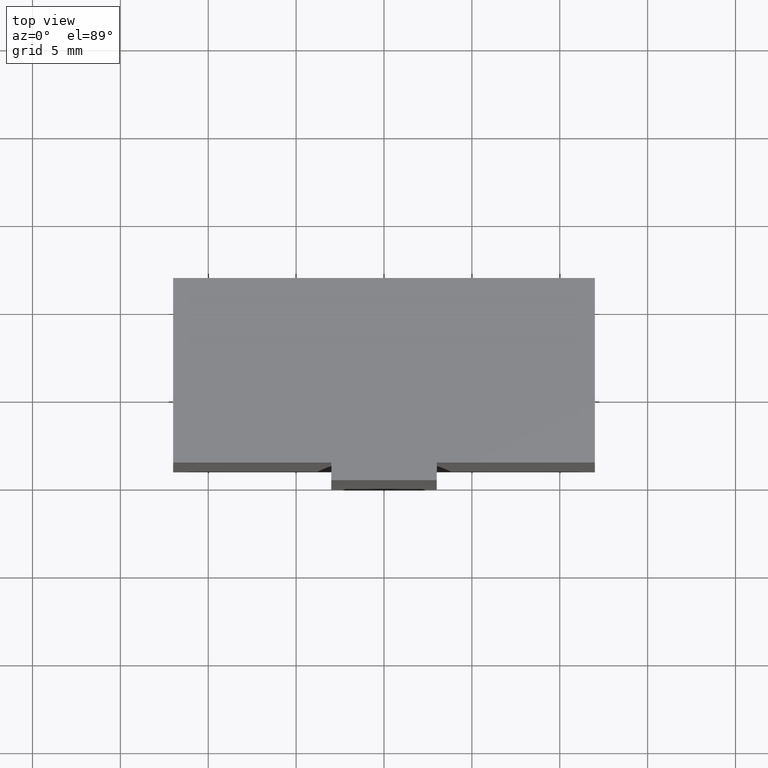
[diagram: clean part render]
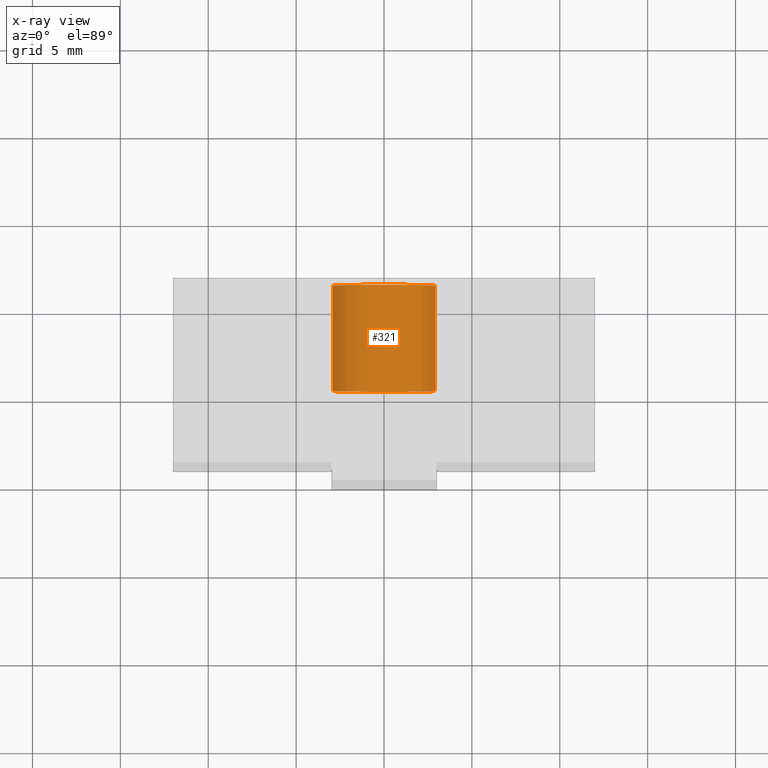
[diagram: x-ray — body ghosted, one internal face saturated and labeled with its STEP entity id]
A machine part, top view, then the same camera in x-ray: the body is ghosted and one INTERNAL B-rep face — a face not visible from any outside direction — is saturated and labeled: STEP entity #321.
In plain terms, the highlighted cylindrical surface (bore or boss wall) has radius 2.9 mm, axis along (0, -1, 0).
Its self-contained STEP definition (entity closure, byte-faithful):
#52=FACE_OUTER_BOUND('',#72,.T.);
#72=EDGE_LOOP('',(#235,#236,#237,#238));
#96=LINE('',#559,#126);
#126=VECTOR('',#457,2.9);
#156=CIRCLE('',#415,2.9);
#157=CIRCLE('',#416,2.9);
#167=VERTEX_POINT('',#556);
#168=VERTEX_POINT('',#558);
#194=EDGE_CURVE('',#167,#167,#156,.T.);
#195=EDGE_CURVE('',#167,#168,#96,.T.);
#196=EDGE_CURVE('',#168,#168,#157,.T.);
#235=ORIENTED_EDGE('',*,*,#194,.F.);
#236=ORIENTED_EDGE('',*,*,#195,.T.);
#237=ORIENTED_EDGE('',*,*,#196,.F.);
#238=ORIENTED_EDGE('',*,*,#195,.F.);
#317=CYLINDRICAL_SURFACE('',#414,2.9);
#321=ADVANCED_FACE('',(#52),#317,.F.);
#414=AXIS2_PLACEMENT_3D('',#555,#453,#454);
#415=AXIS2_PLACEMENT_3D('',#557,#455,#456);
#416=AXIS2_PLACEMENT_3D('',#560,#458,#459);
#453=DIRECTION('center_axis',(0.,-1.,0.));
#454=DIRECTION('ref_axis',(-1.,0.,0.));
#455=DIRECTION('center_axis',(0.,-1.,0.));
#456=DIRECTION('ref_axis',(-1.,0.,0.));
#457=DIRECTION('',(0.,-1.,0.));
#458=DIRECTION('center_axis',(0.,1.,0.));
#459=DIRECTION('ref_axis',(-1.,0.,0.));
#555=CARTESIAN_POINT('Origin',(0.,11.5,-9.));
#556=CARTESIAN_POINT('',(2.9,11.5,-9.));
#557=CARTESIAN_POINT('Origin',(0.,11.5,-9.));
#558=CARTESIAN_POINT('',(2.9,5.5,-9.));
#559=CARTESIAN_POINT('',(2.9,11.5,-9.));
#560=CARTESIAN_POINT('Origin',(0.,5.5,-9.));